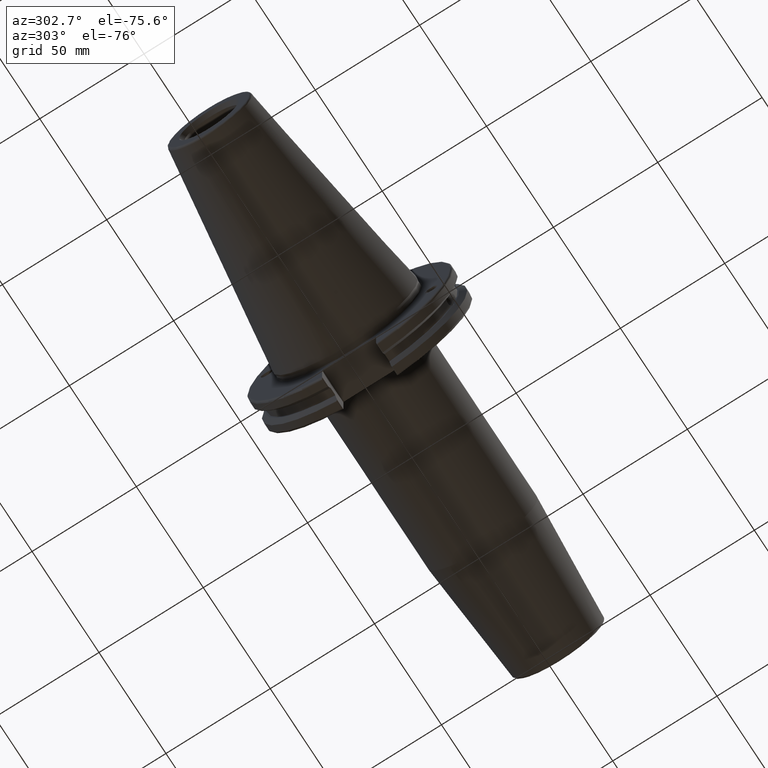
[diagram: clean part render]
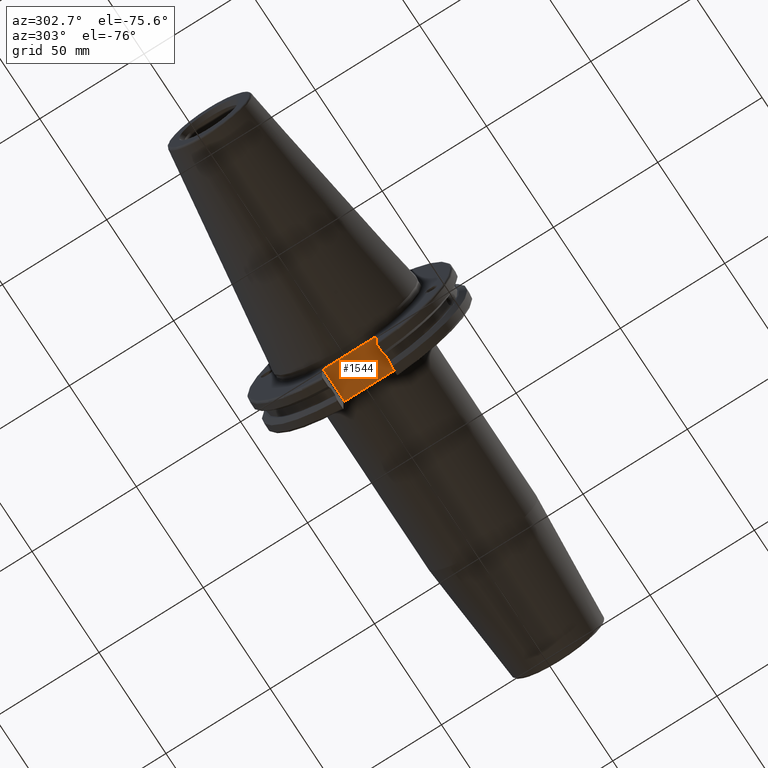
[diagram: same view with one face highlighted and labeled with its STEP entity id]
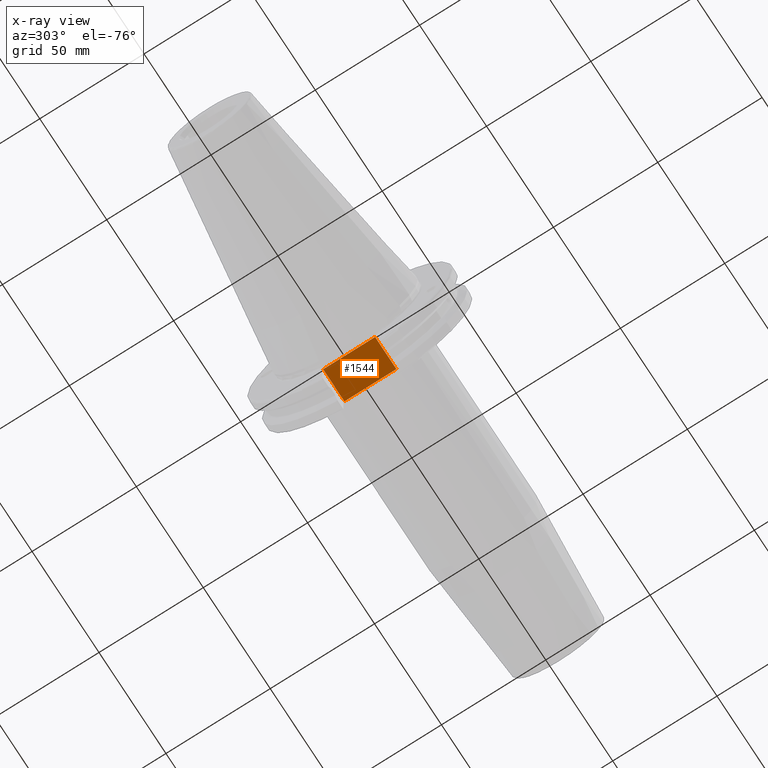
[diagram: x-ray of the same camera — body ghosted, the highlighted face saturated]
A machine part, auxiliary view. The second image highlights one B-rep face of the part: STEP entity #1544.
The next image is the same camera in x-ray: the body ghosted, the highlighted face saturated — about 0% of this face is hidden behind the body in this view.
In plain terms, the highlighted planar face has unit normal (0, 0, 1).
Its self-contained STEP definition (entity closure, byte-faithful):
#93=LINE('',#2255,#187);
#137=LINE('',#2852,#231);
#158=LINE('',#3064,#252);
#159=LINE('',#3066,#253);
#187=VECTOR('',#1826,10.);
#231=VECTOR('',#2020,10.);
#252=VECTOR('',#2099,10.);
#253=VECTOR('',#2102,10.);
#347=PLANE('',#1724);
#423=FACE_OUTER_BOUND('',#531,.T.);
#531=EDGE_LOOP('',(#1351,#1352,#1353,#1354));
#658=VERTEX_POINT('',#2252);
#659=VERTEX_POINT('',#2254);
#746=VERTEX_POINT('',#2849);
#747=VERTEX_POINT('',#2851);
#818=EDGE_CURVE('',#658,#659,#93,.T.);
#931=EDGE_CURVE('',#746,#747,#137,.T.);
#986=EDGE_CURVE('',#659,#746,#158,.T.);
#987=EDGE_CURVE('',#747,#658,#159,.T.);
#1351=ORIENTED_EDGE('',*,*,#986,.F.);
#1352=ORIENTED_EDGE('',*,*,#818,.F.);
#1353=ORIENTED_EDGE('',*,*,#987,.F.);
#1354=ORIENTED_EDGE('',*,*,#931,.F.);
#1544=ADVANCED_FACE('',(#423),#347,.F.);
#1724=AXIS2_PLACEMENT_3D('',#3065,#2100,#2101);
#1826=DIRECTION('',(0.,1.,0.));
#2020=DIRECTION('',(0.,-1.,0.));
#2099=DIRECTION('',(-1.,2.63163976207444E-16,0.));
#2100=DIRECTION('center_axis',(0.,0.,1.));
#2101=DIRECTION('ref_axis',(1.,0.,0.));
#2102=DIRECTION('',(1.,2.63163976207445E-16,0.));
#2252=CARTESIAN_POINT('',(19.05,-12.45,-35.306));
#2254=CARTESIAN_POINT('',(19.05,12.45,-35.306));
#2255=CARTESIAN_POINT('',(19.05,-3.33066907387547E-15,-35.306));
#2849=CARTESIAN_POINT('',(3.175,12.45,-35.306));
#2851=CARTESIAN_POINT('',(3.175,-12.45,-35.306));
#2852=CARTESIAN_POINT('',(3.175,24.60625,-35.306));
#3064=CARTESIAN_POINT('',(10.63125,12.45,-35.306));
#3065=CARTESIAN_POINT('Origin',(18.0875,-6.66133814775094E-15,-35.306));
#3066=CARTESIAN_POINT('',(19.06875,-12.45,-35.306));